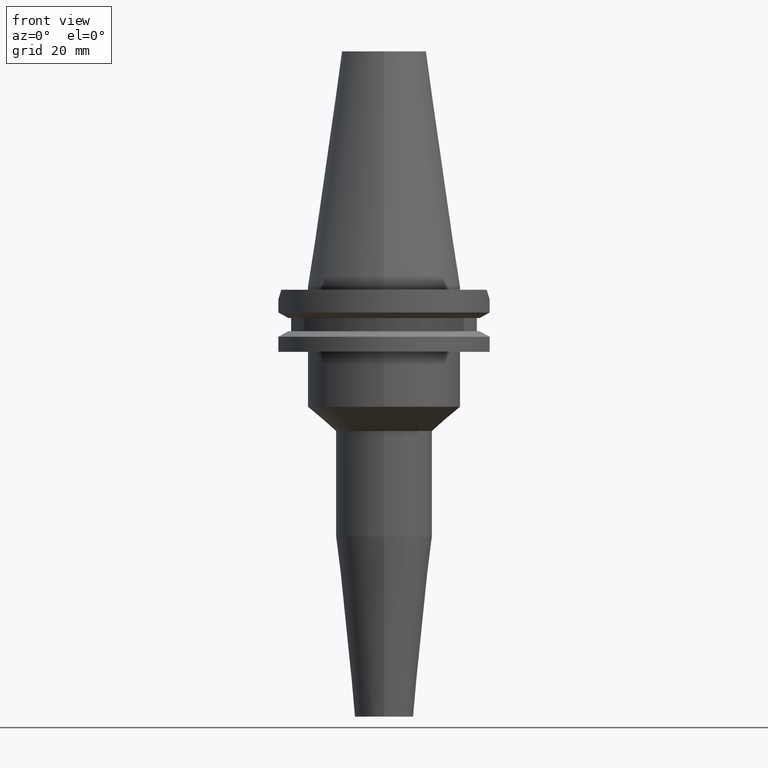
[diagram: clean part render]
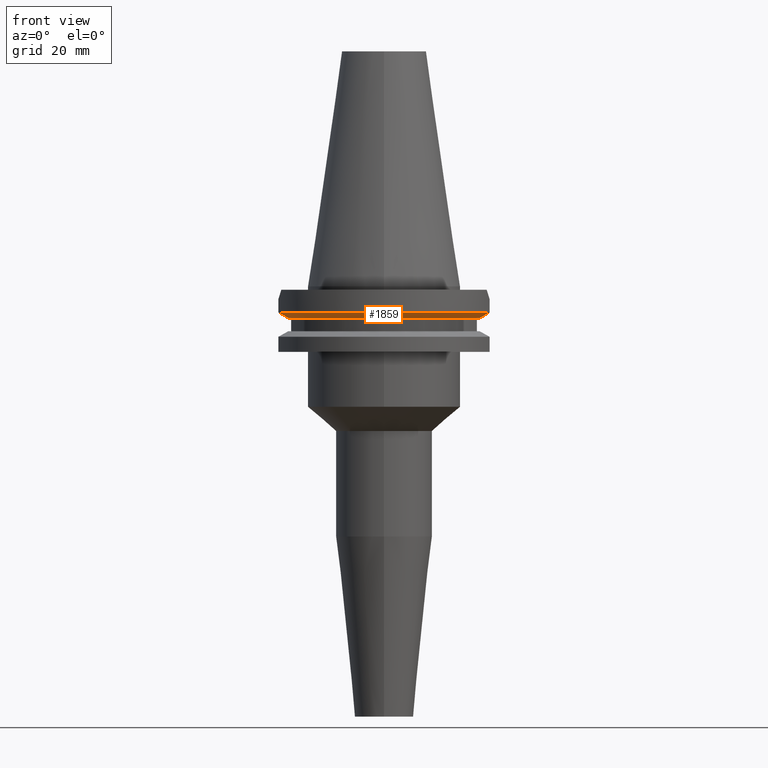
[diagram: same view with one face highlighted and labeled with its STEP entity id]
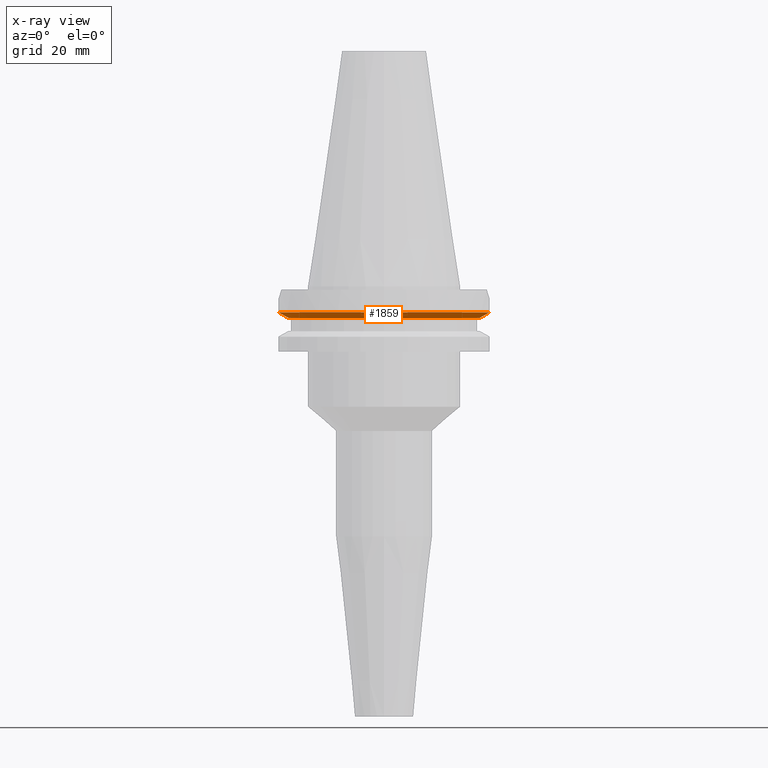
[diagram: x-ray of the same camera — body ghosted, the highlighted face saturated]
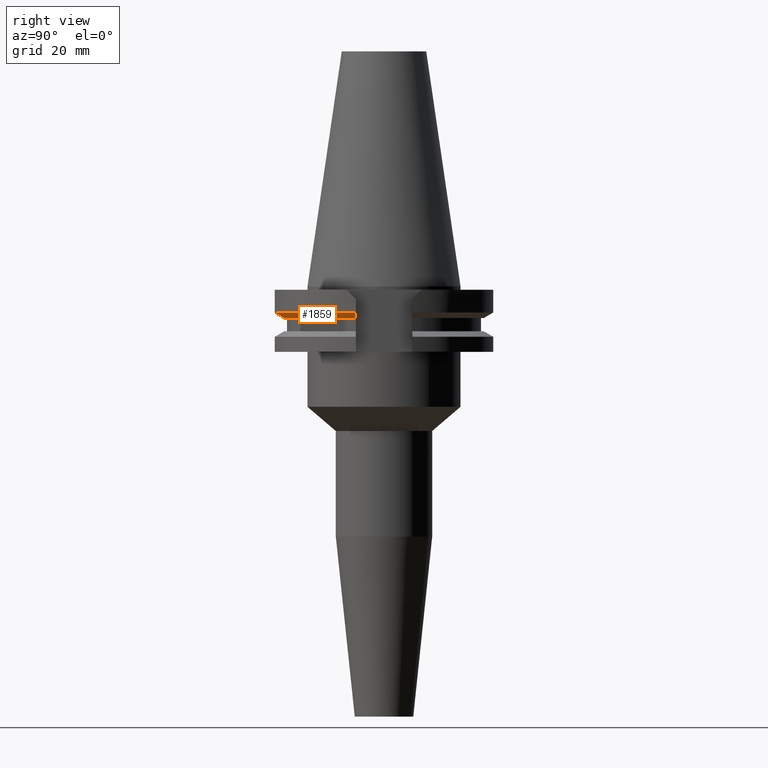
[diagram: same view with one face highlighted and labeled with its STEP entity id]
A machine part, front view. The second image highlights one B-rep face of the part: STEP entity #1859.
The next image is the same camera in x-ray: the body ghosted, the highlighted face saturated — about 0% of this face is hidden behind the body in this view.
A second angle (right view) of the same face is appended — the face is thin or edge-on in the first view.
In plain terms, the highlighted conical surface has half-angle 60 deg.
Its self-contained STEP definition (entity closure, byte-faithful):
#619=CARTESIAN_POINT('',(2.778616453850E1,-8.190000190920E0,-9.207500000001E0));
#620=CARTESIAN_POINT('',(2.810749132278E1,-8.190000190920E0,-9.029550869185E0));
#621=CARTESIAN_POINT('',(2.874991655705E1,-8.189999991758E0,-8.673260600819E0));
#622=CARTESIAN_POINT('',(2.971304241111E1,-8.189999742466E0,-8.137892857314E0));
#623=CARTESIAN_POINT('',(3.035472199995E1,-8.190000606407E0,-7.780262222225E0));
#624=CARTESIAN_POINT('',(3.067550146399E1,-8.190000606407E0,-7.601327811715E0));
#657=CARTESIAN_POINT('',(-3.067550165946E1,-8.189999874276E0,
-7.601334354445E0));
#658=CARTESIAN_POINT('',(-3.035472638233E1,-8.189999874276E0,
-7.780266432872E0));
#659=CARTESIAN_POINT('',(-2.971302863466E1,-8.189999973375E0,
-8.137871223015E0));
#660=CARTESIAN_POINT('',(-2.874990664155E1,-8.190000281772E0,
-8.673237294194E0));
#661=CARTESIAN_POINT('',(-2.810748974259E1,-8.189999360282E0,
-9.029558666210E0));
#662=CARTESIAN_POINT('',(-2.778617704607E1,-8.189999360282E0,
-9.207500000001E0));
#674=CARTESIAN_POINT('',(0.E0,1.121722380079E-14,-7.601333230926E0));
#675=DIRECTION('',(0.E0,0.E0,1.E0));
#676=DIRECTION('',(-9.661575315241E-1,-2.579527559055E-1,0.E0));
#677=AXIS2_PLACEMENT_3D('',#674,#675,#676);
#682=CARTESIAN_POINT('',(0.E0,1.121722380079E-14,-7.601333230926E0));
#683=DIRECTION('',(0.E0,0.E0,1.E0));
#684=DIRECTION('',(0.E0,-1.E0,0.E0));
#685=AXIS2_PLACEMENT_3D('',#682,#683,#684);
#713=CARTESIAN_POINT('',(0.E0,1.121722380079E-14,-9.207500000003E0));
#714=DIRECTION('',(0.E0,0.E0,1.E0));
#715=DIRECTION('',(-9.592008904640E-1,-2.827253998727E-1,0.E0));
#716=AXIS2_PLACEMENT_3D('',#713,#714,#715);
#721=CARTESIAN_POINT('',(0.E0,1.121722380079E-14,-9.207500000003E0));
#722=DIRECTION('',(0.E0,0.E0,1.E0));
#723=DIRECTION('',(0.E0,-1.E0,0.E0));
#724=AXIS2_PLACEMENT_3D('',#721,#722,#723);
#1261=CARTESIAN_POINT('',(2.778616453850E1,-8.190000190920E0,
-9.207500000001E0));
#1262=VERTEX_POINT('',#1261);
#1263=VERTEX_POINT('',#624);
#1280=CARTESIAN_POINT('',(-3.067550165946E1,-8.189999874276E0,
-7.601334354445E0));
#1281=VERTEX_POINT('',#1280);
#1282=VERTEX_POINT('',#662);
#1326=CARTESIAN_POINT('',(-3.537899182731E-14,-2.896803755053E1,
-9.207500000003E0));
#1327=VERTEX_POINT('',#1326);
#1332=CARTESIAN_POINT('',(0.E0,-3.175E1,-7.601333230926E0));
#1333=VERTEX_POINT('',#1332);
#1844=CARTESIAN_POINT('',(0.E0,1.121722380079E-14,-8.404416615464E0));
#1845=DIRECTION('',(0.E0,0.E0,1.E0));
#1846=DIRECTION('',(0.E0,1.E0,0.E0));
#1847=AXIS2_PLACEMENT_3D('',#1844,#1845,#1846);
#1848=CONICAL_SURFACE('',#1847,3.035901877527E1,6.E1);
#1849=ORIENTED_EDGE('',*,*,#1796,.F.);
#1851=ORIENTED_EDGE('',*,*,#1850,.F.);
#1853=ORIENTED_EDGE('',*,*,#1852,.F.);
#1854=ORIENTED_EDGE('',*,*,#1830,.F.);
#1855=ORIENTED_EDGE('',*,*,#1757,.T.);
#1856=ORIENTED_EDGE('',*,*,#1755,.T.);
#1857=EDGE_LOOP('',(#1849,#1851,#1853,#1854,#1855,#1856));
#1858=FACE_OUTER_BOUND('',#1857,.F.);
#625=B_SPLINE_CURVE_WITH_KNOTS('',3,(#619,#620,#621,#622,#623,#624),
.UNSPECIFIED.,.F.,.F.,(4,1,1,4),(0.E0,3.333333333333E-1,6.666666666667E-1,1.E0),
.UNSPECIFIED.);
#663=B_SPLINE_CURVE_WITH_KNOTS('',3,(#657,#658,#659,#660,#661,#662),
.UNSPECIFIED.,.F.,.F.,(4,1,1,4),(0.E0,3.333333333333E-1,6.666666666667E-1,1.E0),
.UNSPECIFIED.);
#678=CIRCLE('',#677,3.175E1);
#686=CIRCLE('',#685,3.175E1);
#717=CIRCLE('',#716,2.896803755053E1);
#725=CIRCLE('',#724,2.896803755053E1);
#1755=EDGE_CURVE('',#1333,#1263,#686,.T.);
#1757=EDGE_CURVE('',#1281,#1333,#678,.T.);
#1796=EDGE_CURVE('',#1262,#1263,#625,.T.);
#1830=EDGE_CURVE('',#1281,#1282,#663,.T.);
#1850=EDGE_CURVE('',#1327,#1262,#725,.T.);
#1852=EDGE_CURVE('',#1282,#1327,#717,.T.);
#1859=ADVANCED_FACE('',(#1858),#1848,.T.);